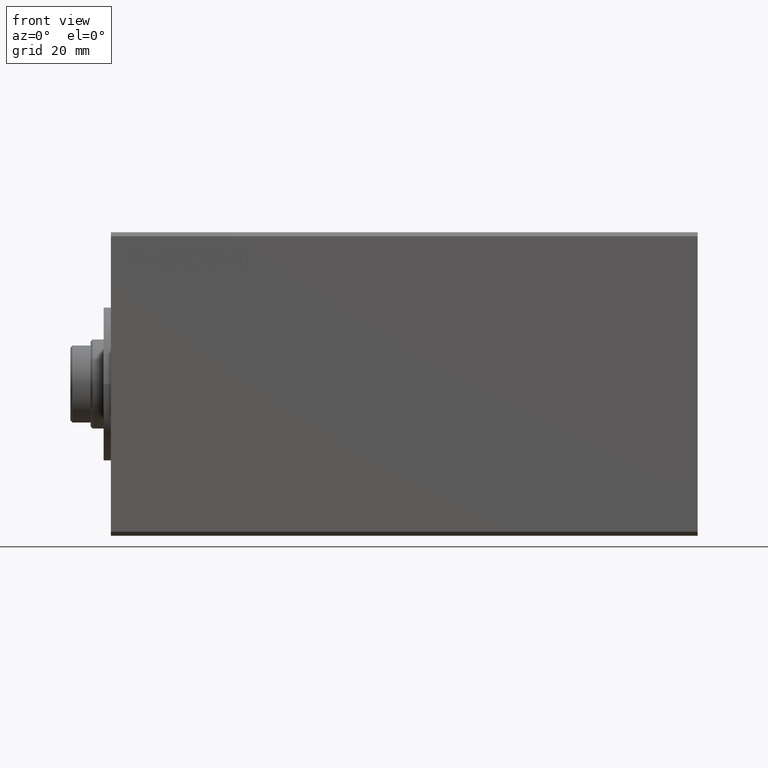
[diagram: clean part render]
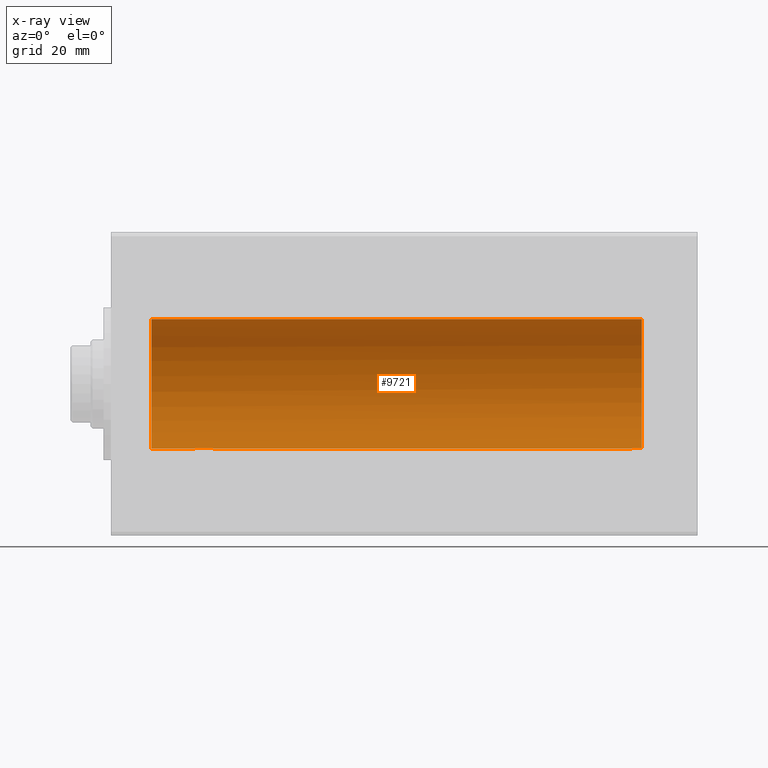
[diagram: x-ray — body ghosted, one internal face saturated and labeled with its STEP entity id]
A machine part, front view, then the same camera in x-ray: the body is ghosted and one INTERNAL B-rep face — a face not visible from any outside direction — is saturated and labeled: STEP entity #9721.
In plain terms, the highlighted cylindrical surface (partial cylindrical patch) has radius 16 mm, axis along (-1, -0, -0).
Its self-contained STEP definition (entity closure, byte-faithful):
#4 = EDGE_LOOP ( 'NONE', ( #17636, #34863, #37311, #32820, #6318, #35047, #8603, #2080, #1487, #24702 ) ) ;
#309 = VERTEX_POINT ( 'NONE', #31188 ) ;
#1174 = CARTESIAN_POINT ( 'NONE',  ( 25.67843830749630740, 0.6438297815899759469, -15.98783114994251697 ) ) ;
#1212 = CARTESIAN_POINT ( 'NONE',  ( 131.1999999999999886, 1.786057109949259036, -15.89999999999998970 ) ) ;
#1380 = VERTEX_POINT ( 'NONE', #32941 ) ;
#1487 = ORIENTED_EDGE ( 'NONE', *, *, #23268, .F. ) ;
#1665 = VECTOR ( 'NONE', #34549, 1000.000000000000000 ) ;
#1682 = CARTESIAN_POINT ( 'NONE',  ( 128.5452919902453459, 1.250171241089536256, -15.95169574138015989 ) ) ;
#1806 = VERTEX_POINT ( 'NONE', #7220 ) ;
#2080 = ORIENTED_EDGE ( 'NONE', *, *, #24178, .T. ) ;
#2598 = VECTOR ( 'NONE', #11929, 1000.000000000000000 ) ;
#3412 = CARTESIAN_POINT ( 'NONE',  ( 128.9089476333673758, 1.786057109949259036, -15.89999999999998970 ) ) ;
#4443 = EDGE_CURVE ( 'NONE', #24039, #7572, #27963, .T. ) ;
#5067 = EDGE_CURVE ( 'NONE', #8859, #41447, #23209, .T. ) ;
#5473 = CARTESIAN_POINT ( 'NONE',  ( 128.2643523021424699, 0.3237335850403373350, -15.99751506009603652 ) ) ;
#5702 = VECTOR ( 'NONE', #37042, 1000.000000000000000 ) ;
#5895 = CARTESIAN_POINT ( 'NONE',  ( 20.36400824168861234, 0.8002234119869107154, -15.98070334047259777 ) ) ;
#6123 = CARTESIAN_POINT ( 'NONE',  ( 20.70828422114123057, 1.528580496451064752, -15.92742812959714982 ) ) ;
#6318 = ORIENTED_EDGE ( 'NONE', *, *, #30228, .T. ) ;
#7220 = CARTESIAN_POINT ( 'NONE',  ( 9.999999999999994671, 1.959434878635765131E-15, -16.00000000000000000 ) ) ;
#7384 = CIRCLE ( 'NONE', #28055, 16.00000000000000000 ) ;
#7572 = VERTEX_POINT ( 'NONE', #3412 ) ;
#8174 = VERTEX_POINT ( 'NONE', #34673 ) ;
#8334 = DIRECTION ( 'NONE',  ( -1.000000000000000000, -0.000000000000000000, -0.000000000000000000 ) ) ;
#8593 = CARTESIAN_POINT ( 'NONE',  ( 128.4763581403532555, 1.104555034037126848, -15.96255602784426841 ) ) ;
#8603 = ORIENTED_EDGE ( 'NONE', *, *, #36639, .F. ) ;
#8859 = VERTEX_POINT ( 'NONE', #35112 ) ;
#8974 = CARTESIAN_POINT ( 'NONE',  ( 25.75000000000000000, 1.966672448372719994E-15, -16.00000000000000000 ) ) ;
#9247 = CARTESIAN_POINT ( 'NONE',  ( 20.25000000000000000, 0.1628529246558463039, -16.00000000000000000 ) ) ;
#9721 = ADVANCED_FACE ( 'NONE', ( #11063 ), #41844, .F. ) ;
#10079 = AXIS2_PLACEMENT_3D ( 'NONE', #27557, #34461, #28442 ) ;
#10459 = CARTESIAN_POINT ( 'NONE',  ( 131.1999999999999886, 1.959434878635765131E-15, -16.00000000000000000 ) ) ;
#11063 = FACE_OUTER_BOUND ( 'NONE', #4, .T. ) ;
#11645 = VERTEX_POINT ( 'NONE', #14323 ) ;
#11929 = DIRECTION ( 'NONE',  ( -1.000000000000000000, -0.000000000000000000, -0.000000000000000000 ) ) ;
#12819 = CARTESIAN_POINT ( 'NONE',  ( 20.54529199024537789, 1.250171241089528928, -15.95169574138015278 ) ) ;
#14323 = CARTESIAN_POINT ( 'NONE',  ( 20.25000000000000000, 1.952197298178576320E-15, -16.00000000000000000 ) ) ;
#14479 = CARTESIAN_POINT ( 'NONE',  ( 131.1999999999999886, 0.000000000000000000, 16.00000000000000000 ) ) ;
#14987 = CARTESIAN_POINT ( 'NONE',  ( 25.30299467954352011, 1.537922561208759253, -15.92787311163533914 ) ) ;
#15071 = CARTESIAN_POINT ( 'NONE',  ( 128.9089476333673758, 1.786057109949259036, -15.89999999999998970 ) ) ;
#15281 = CARTESIAN_POINT ( 'NONE',  ( 128.8030230027346192, 1.662044306363393842, -15.91393043707982002 ) ) ;
#15620 = B_SPLINE_CURVE_WITH_KNOTS ( 'NONE', 3,
 ( #39159, #25763, #5473, #39606, #39378, #8593, #1682, #22419, #15281, #15071 ),
 .UNSPECIFIED., .F., .F.,
 ( 4, 2, 2, 2, 4 ),
 ( 0.001937515079377272013, 0.002421672136522719492, 0.002905829193668166537, 0.003389986250813613582, 0.003874143307959060627 ),
 .UNSPECIFIED. ) ;
#15697 = CARTESIAN_POINT ( 'NONE',  ( 20.47635814035335855, 1.104555034037125516, -15.96255602784426841 ) ) ;
#16143 = CARTESIAN_POINT ( 'NONE',  ( 20.26435230214253380, 0.3237335850403343929, -15.99751506009603652 ) ) ;
#17282 = CARTESIAN_POINT ( 'NONE',  ( 131.1999999999999886, 1.786057109949259036, -15.89999999999998970 ) ) ;
#17636 = ORIENTED_EDGE ( 'NONE', *, *, #5067, .F. ) ;
#18163 = CARTESIAN_POINT ( 'NONE',  ( 131.1999999999999886, 1.786057109949259036, -15.89999999999998970 ) ) ;
#19329 = DIRECTION ( 'NONE',  ( -1.000000000000000000, 0.000000000000000000, 0.000000000000000000 ) ) ;
#20625 = EDGE_CURVE ( 'NONE', #1380, #41447, #29521, .T. ) ;
#20722 = LINE ( 'NONE', #14479, #1665 ) ;
#21676 = CARTESIAN_POINT ( 'NONE',  ( 25.75000000000000355, 0.1629275007895856497, -16.00000000000000000 ) ) ;
#22419 = CARTESIAN_POINT ( 'NONE',  ( 128.7082842211411560, 1.528580496451071635, -15.92742812959714982 ) ) ;
#23065 = CARTESIAN_POINT ( 'NONE',  ( 20.80302300273467964, 1.662044306363391177, -15.91393043707981292 ) ) ;
#23209 = LINE ( 'NONE', #40402, #5702 ) ;
#23268 = EDGE_CURVE ( 'NONE', #1380, #8174, #27983, .T. ) ;
#24039 = VERTEX_POINT ( 'NONE', #17282 ) ;
#24050 = DIRECTION ( 'NONE',  ( -1.000000000000000000, -0.000000000000000000, -0.000000000000000000 ) ) ;
#24178 = EDGE_CURVE ( 'NONE', #11645, #8174, #30440, .T. ) ;
#24702 = ORIENTED_EDGE ( 'NONE', *, *, #20625, .T. ) ;
#25025 = CARTESIAN_POINT ( 'NONE',  ( 25.09105236663257088, 1.786057109949259036, -15.89999999999998970 ) ) ;
#25227 = AXIS2_PLACEMENT_3D ( 'NONE', #37124, #33542, #36228 ) ;
#25763 = CARTESIAN_POINT ( 'NONE',  ( 128.2499999999999716, 0.1628529246558446664, -16.00000000000000000 ) ) ;
#25967 = CARTESIAN_POINT ( 'NONE',  ( 20.25000000000000000, 1.952197298178576320E-15, -16.00000000000000000 ) ) ;
#27557 = CARTESIAN_POINT ( 'NONE',  ( 131.1999999999999886, 0.000000000000000000, 0.000000000000000000 ) ) ;
#27963 = LINE ( 'NONE', #1212, #37703 ) ;
#27983 = LINE ( 'NONE', #18163, #2598 ) ;
#28055 = AXIS2_PLACEMENT_3D ( 'NONE', #42123, #19329, #28720 ) ;
#28442 = DIRECTION ( 'NONE',  ( 0.000000000000000000, 0.000000000000000000, 1.000000000000000000 ) ) ;
#28594 = CARTESIAN_POINT ( 'NONE',  ( 25.46669777805105639, 1.258673386848676135, -15.95335904956524864 ) ) ;
#28720 = DIRECTION ( 'NONE',  ( 0.000000000000000000, 0.000000000000000000, 1.000000000000000000 ) ) ;
#29521 = B_SPLINE_CURVE_WITH_KNOTS ( 'NONE', 3,
 ( #25025, #14987, #28594, #42216, #1174, #34834, #21676, #41996 ),
 .UNSPECIFIED., .F., .F.,
 ( 4, 2, 2, 4 ),
 ( 0.000000000000000000, 0.0009687575396886391509, 0.001453136309532957046, 0.001937515079377275266 ),
 .UNSPECIFIED. ) ;
#30193 = VECTOR ( 'NONE', #24050, 1000.000000000000000 ) ;
#30228 = EDGE_CURVE ( 'NONE', #309, #38528, #20722, .T. ) ;
#30440 = B_SPLINE_CURVE_WITH_KNOTS ( 'NONE', 3,
 ( #25967, #9247, #16143, #42941, #5895, #15697, #12819, #6123, #23065, #36224 ),
 .UNSPECIFIED., .F., .F.,
 ( 4, 2, 2, 2, 4 ),
 ( 0.001937515079377276567, 0.002421672136522722528, 0.002905829193668168706, 0.003389986250813614450, 0.003874143307959060194 ),
 .UNSPECIFIED. ) ;
#31188 = CARTESIAN_POINT ( 'NONE',  ( 131.1999999999999886, 0.000000000000000000, 16.00000000000000000 ) ) ;
#32820 = ORIENTED_EDGE ( 'NONE', *, *, #36191, .F. ) ;
#32941 = CARTESIAN_POINT ( 'NONE',  ( 25.09105236663257088, 1.786057109949259036, -15.89999999999998970 ) ) ;
#33542 = DIRECTION ( 'NONE',  ( -1.000000000000000000, 0.000000000000000000, 0.000000000000000000 ) ) ;
#34461 = DIRECTION ( 'NONE',  ( -1.000000000000000000, -0.000000000000000000, -0.000000000000000000 ) ) ;
#34549 = DIRECTION ( 'NONE',  ( -1.000000000000000000, -0.000000000000000000, -0.000000000000000000 ) ) ;
#34673 = CARTESIAN_POINT ( 'NONE',  ( 20.90894763336742912, 1.786057109949259036, -15.89999999999998970 ) ) ;
#34834 = CARTESIAN_POINT ( 'NONE',  ( 25.73536268302067853, 0.3260974502564771282, -15.99746611559688780 ) ) ;
#34863 = ORIENTED_EDGE ( 'NONE', *, *, #43021, .T. ) ;
#35047 = ORIENTED_EDGE ( 'NONE', *, *, #36814, .T. ) ;
#35112 = CARTESIAN_POINT ( 'NONE',  ( 128.2499999999999432, 1.952197214168045357E-15, -16.00000000000000000 ) ) ;
#35183 = CIRCLE ( 'NONE', #25227, 16.00000000000000000 ) ;
#36191 = EDGE_CURVE ( 'NONE', #309, #24039, #35183, .T. ) ;
#36224 = CARTESIAN_POINT ( 'NONE',  ( 20.90894763336742912, 1.786057109949259036, -15.89999999999998970 ) ) ;
#36228 = DIRECTION ( 'NONE',  ( 0.000000000000000000, 0.000000000000000000, 1.000000000000000000 ) ) ;
#36639 = EDGE_CURVE ( 'NONE', #11645, #1806, #41242, .T. ) ;
#36814 = EDGE_CURVE ( 'NONE', #38528, #1806, #7384, .T. ) ;
#37042 = DIRECTION ( 'NONE',  ( -1.000000000000000000, -0.000000000000000000, -0.000000000000000000 ) ) ;
#37124 = CARTESIAN_POINT ( 'NONE',  ( 131.1999999999999886, 0.000000000000000000, 0.000000000000000000 ) ) ;
#37311 = ORIENTED_EDGE ( 'NONE', *, *, #4443, .F. ) ;
#37703 = VECTOR ( 'NONE', #8334, 1000.000000000000000 ) ;
#38528 = VERTEX_POINT ( 'NONE', #41068 ) ;
#39159 = CARTESIAN_POINT ( 'NONE',  ( 128.2499999999999432, 1.952197214168045357E-15, -16.00000000000000000 ) ) ;
#39378 = CARTESIAN_POINT ( 'NONE',  ( 128.3640082416885946, 0.8002234119869110485, -15.98070334047259777 ) ) ;
#39606 = CARTESIAN_POINT ( 'NONE',  ( 128.3210355422414750, 0.6416550435731687152, -15.98791951246752596 ) ) ;
#40402 = CARTESIAN_POINT ( 'NONE',  ( 131.1999999999999886, 1.959434878635765131E-15, -16.00000000000000000 ) ) ;
#41068 = CARTESIAN_POINT ( 'NONE',  ( 9.999999999999994671, 0.000000000000000000, 16.00000000000000000 ) ) ;
#41242 = LINE ( 'NONE', #10459, #30193 ) ;
#41447 = VERTEX_POINT ( 'NONE', #8974 ) ;
#41844 = CYLINDRICAL_SURFACE ( 'NONE', #10079, 16.00000000000000000 ) ;
#41996 = CARTESIAN_POINT ( 'NONE',  ( 25.75000000000000000, 1.966672448372719994E-15, -16.00000000000000000 ) ) ;
#42123 = CARTESIAN_POINT ( 'NONE',  ( 9.999999999999994671, 0.000000000000000000, 0.000000000000000000 ) ) ;
#42216 = CARTESIAN_POINT ( 'NONE',  ( 25.63617786229477957, 0.7997846173174859574, -15.98073294566550473 ) ) ;
#42941 = CARTESIAN_POINT ( 'NONE',  ( 20.32103554224154607, 0.6416550435731651625, -15.98791951246752241 ) ) ;
#43021 = EDGE_CURVE ( 'NONE', #8859, #7572, #15620, .T. ) ;